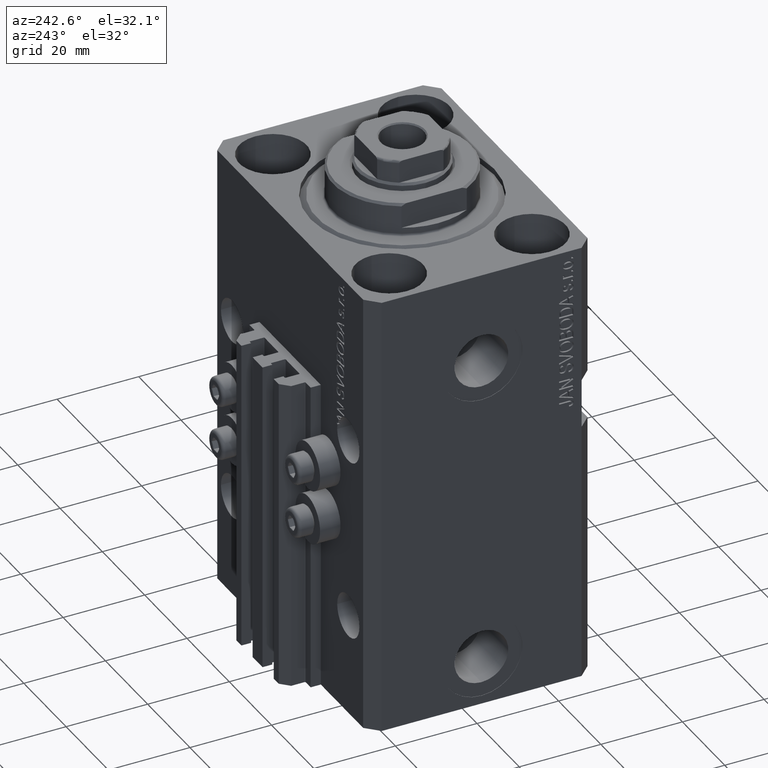
[diagram: clean part render]
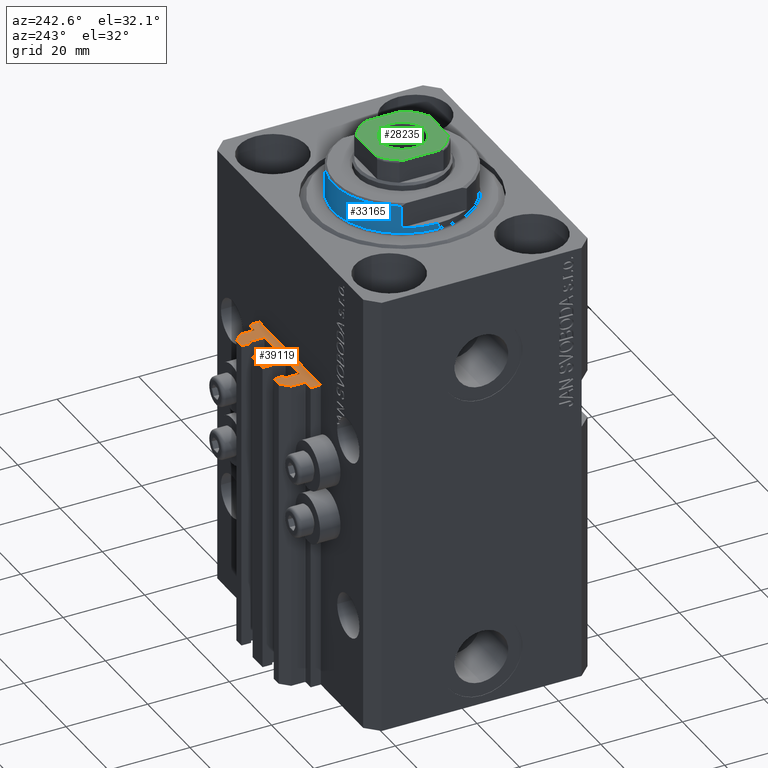
[diagram: same view with three faces highlighted in distinct colors, each labeled with its STEP entity id]
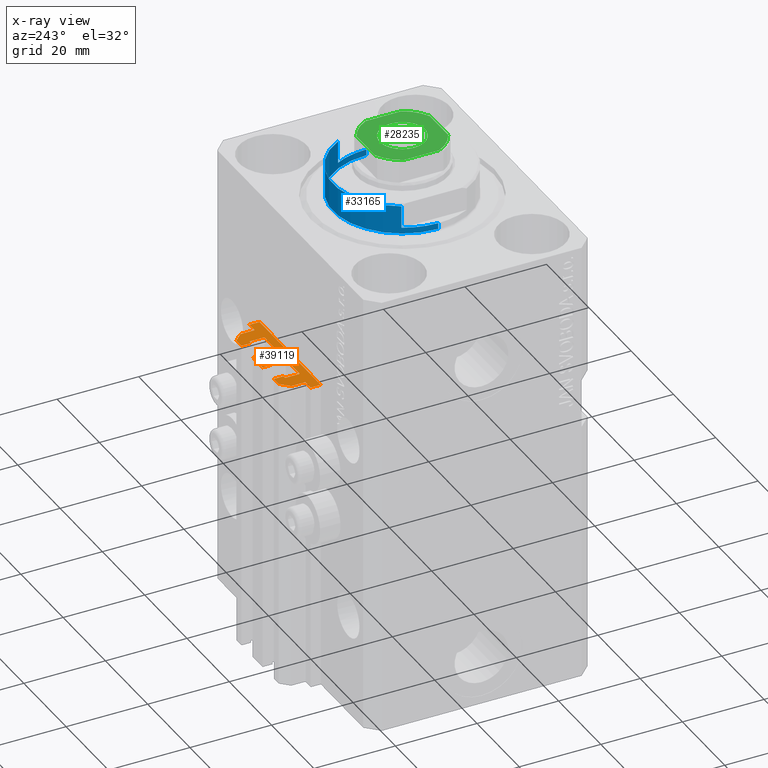
[diagram: x-ray of the same camera — body ghosted, the three highlighted faces saturated]
A machine part, auxiliary view with three faces highlighted in distinct colors.
The next image is the same camera in x-ray (body ghosted, the three faces saturated) — at least one of them is partly hidden behind the body in this view.
Their STEP definitions:

[orange] entity #39119 — the highlighted planar face has unit normal (0, 0, 1).
#724 = DIRECTION ( 'NONE',  ( 1.000000000000000000, 0.000000000000000000, 0.000000000000000000 ) ) ;
#892 = CIRCLE ( 'NONE', #14596, 0.1999999999999970690 ) ;
#1340 = ORIENTED_EDGE ( 'NONE', *, *, #12630, .T. ) ;
#1371 = EDGE_CURVE ( 'NONE', #12769, #1455, #11452, .T. ) ;
#1455 = VERTEX_POINT ( 'NONE', #22915 ) ;
#1488 = CARTESIAN_POINT ( 'NONE',  ( 12.20000000000000107, 30.20000000000002061, -33.00000000000000000 ) ) ;
#1587 = DIRECTION ( 'NONE',  ( 0.000000000000000000, 0.000000000000000000, 1.000000000000000000 ) ) ;
#1608 = ORIENTED_EDGE ( 'NONE', *, *, #22301, .F. ) ;
#1744 = CARTESIAN_POINT ( 'NONE',  ( -1.599999999999997868, 32.90000000000001279, -33.00000000000000000 ) ) ;
#1788 = VERTEX_POINT ( 'NONE', #5337 ) ;
#1831 = VECTOR ( 'NONE', #44254, 1000.000000000000000 ) ;
#2359 = LINE ( 'NONE', #46407, #21431 ) ;
#2412 = CARTESIAN_POINT ( 'NONE',  ( 1.599999999999999645, 29.69999999999999929, -33.00000000000000000 ) ) ;
#2489 = LINE ( 'NONE', #17066, #44606 ) ;
#2578 = ORIENTED_EDGE ( 'NONE', *, *, #24560, .T. ) ;
#2605 = DIRECTION ( 'NONE',  ( -1.000000000000000000, 0.000000000000000000, 0.000000000000000000 ) ) ;
#2645 = DIRECTION ( 'NONE',  ( -1.000000000000000000, 0.000000000000000000, 0.000000000000000000 ) ) ;
#2827 = ORIENTED_EDGE ( 'NONE', *, *, #36814, .T. ) ;
#2910 = AXIS2_PLACEMENT_3D ( 'NONE', #7215, #21801, #4119 ) ;
#3120 = VECTOR ( 'NONE', #36135, 1000.000000000000000 ) ;
#3138 = ORIENTED_EDGE ( 'NONE', *, *, #22453, .F. ) ;
#3320 = ORIENTED_EDGE ( 'NONE', *, *, #10796, .F. ) ;
#3435 = VERTEX_POINT ( 'NONE', #19821 ) ;
#3468 = VERTEX_POINT ( 'NONE', #35854 ) ;
#3476 = CARTESIAN_POINT ( 'NONE',  ( -7.650000000000000355, 33.09999999999999432, -33.00000000000000000 ) ) ;
#3518 = ORIENTED_EDGE ( 'NONE', *, *, #7107, .T. ) ;
#3902 = VECTOR ( 'NONE', #21447, 1000.000000000000000 ) ;
#3995 = LINE ( 'NONE', #32718, #3902 ) ;
#4071 = CIRCLE ( 'NONE', #43056, 0.2000000000000031197 ) ;
#4088 = ORIENTED_EDGE ( 'NONE', *, *, #39709, .T. ) ;
#4119 = DIRECTION ( 'NONE',  ( 1.000000000000000000, 0.000000000000000000, 0.000000000000000000 ) ) ;
#4125 = CARTESIAN_POINT ( 'NONE',  ( -1.800000000000000933, 29.69999999999999929, -33.00000000000000000 ) ) ;
#4481 = ORIENTED_EDGE ( 'NONE', *, *, #37088, .T. ) ;
#4559 = ORIENTED_EDGE ( 'NONE', *, *, #13640, .T. ) ;
#4841 = DIRECTION ( 'NONE',  ( 1.000000000000000000, 0.000000000000000000, 0.000000000000000000 ) ) ;
#4946 = ORIENTED_EDGE ( 'NONE', *, *, #14795, .T. ) ;
#5137 = CARTESIAN_POINT ( 'NONE',  ( -1.800000000000000933, 33.10000000000001563, -33.00000000000000000 ) ) ;
#5161 = CARTESIAN_POINT ( 'NONE',  ( 7.649999999999998579, 33.10000000000001563, -33.00000000000000000 ) ) ;
#5246 = ORIENTED_EDGE ( 'NONE', *, *, #17654, .T. ) ;
#5337 = CARTESIAN_POINT ( 'NONE',  ( -2.350000000000003197, 33.10000000000000853, -33.00000000000000000 ) ) ;
#5483 = ORIENTED_EDGE ( 'NONE', *, *, #28129, .T. ) ;
#5881 = DIRECTION ( 'NONE',  ( -1.084202172485505223E-15, 1.000000000000000000, 0.000000000000000000 ) ) ;
#6045 = CARTESIAN_POINT ( 'NONE',  ( 1.800000000000000933, 33.10000000000001563, -33.00000000000000000 ) ) ;
#6322 = LINE ( 'NONE', #35535, #21399 ) ;
#6600 = CARTESIAN_POINT ( 'NONE',  ( -14.50000000000000000, 27.50000000000000355, -33.00000000000000000 ) ) ;
#6659 = DIRECTION ( 'NONE',  ( -1.000000000000000000, -1.084202172485504828E-15, 0.000000000000000000 ) ) ;
#6772 = VERTEX_POINT ( 'NONE', #10050 ) ;
#7107 = EDGE_CURVE ( 'NONE', #32771, #45942, #25458, .T. ) ;
#7215 = CARTESIAN_POINT ( 'NONE',  ( 1.800000000000000933, 32.90000000000001279, -33.00000000000000000 ) ) ;
#7275 = DIRECTION ( 'NONE',  ( 0.000000000000000000, 0.000000000000000000, 1.000000000000000000 ) ) ;
#7597 = CARTESIAN_POINT ( 'NONE',  ( -8.399999999999996803, 29.69999999999999929, -33.00000000000000000 ) ) ;
#8069 = VERTEX_POINT ( 'NONE', #5137 ) ;
#8230 = LINE ( 'NONE', #15167, #36613 ) ;
#8373 = ORIENTED_EDGE ( 'NONE', *, *, #25423, .F. ) ;
#9383 = CARTESIAN_POINT ( 'NONE',  ( -12.00000000000000000, 33.49999999999998579, -33.00000000000000000 ) ) ;
#9614 = ORIENTED_EDGE ( 'NONE', *, *, #39445, .T. ) ;
#9754 = DIRECTION ( 'NONE',  ( -6.776263578034378061E-17, -1.000000000000000000, 0.000000000000000000 ) ) ;
#10031 = LINE ( 'NONE', #24611, #45712 ) ;
#10050 = CARTESIAN_POINT ( 'NONE',  ( -8.199999999999997513, 33.09999999999998721, -33.00000000000000000 ) ) ;
#10065 = CARTESIAN_POINT ( 'NONE',  ( -7.650000000000000355, 35.50000000000000000, -33.00000000000000000 ) ) ;
#10186 = AXIS2_PLACEMENT_3D ( 'NONE', #14311, #36829, #18617 ) ;
#10343 = DIRECTION ( 'NONE',  ( 1.000000000000000000, -1.261617073437681085E-14, 0.000000000000000000 ) ) ;
#10350 = VERTEX_POINT ( 'NONE', #45035 ) ;
#10440 = LINE ( 'NONE', #31763, #13051 ) ;
#10501 = DIRECTION ( 'NONE',  ( -5.256737805990334897E-16, 1.000000000000000000, 0.000000000000000000 ) ) ;
#10658 = LINE ( 'NONE', #39865, #35926 ) ;
#10774 = ORIENTED_EDGE ( 'NONE', *, *, #12310, .F. ) ;
#10796 = EDGE_CURVE ( 'NONE', #37581, #44938, #44200, .T. ) ;
#10886 = AXIS2_PLACEMENT_3D ( 'NONE', #44285, #44042, #33027 ) ;
#11452 = LINE ( 'NONE', #32527, #42463 ) ;
#11501 = VERTEX_POINT ( 'NONE', #31963 ) ;
#11628 = LINE ( 'NONE', #16155, #18609 ) ;
#11713 = CIRCLE ( 'NONE', #10186, 0.2000000000000016209 ) ;
#11924 = VERTEX_POINT ( 'NONE', #36928 ) ;
#12136 = VERTEX_POINT ( 'NONE', #43515 ) ;
#12142 = ORIENTED_EDGE ( 'NONE', *, *, #16669, .T. ) ;
#12178 = VERTEX_POINT ( 'NONE', #21374 ) ;
#12199 = VECTOR ( 'NONE', #17936, 1000.000000000000000 ) ;
#12310 = EDGE_CURVE ( 'NONE', #41796, #45942, #24312, .T. ) ;
#12630 = EDGE_CURVE ( 'NONE', #40180, #44598, #38692, .T. ) ;
#12731 = CARTESIAN_POINT ( 'NONE',  ( 7.649999999999998579, 35.50000000000001421, -33.00000000000000000 ) ) ;
#12769 = VERTEX_POINT ( 'NONE', #14463 ) ;
#13051 = VECTOR ( 'NONE', #24088, 1000.000000000000000 ) ;
#13621 = AXIS2_PLACEMENT_3D ( 'NONE', #4125, #40506, #15115 ) ;
#13640 = EDGE_CURVE ( 'NONE', #30170, #3435, #46185, .T. ) ;
#13685 = LINE ( 'NONE', #6045, #27899 ) ;
#13899 = ORIENTED_EDGE ( 'NONE', *, *, #38534, .T. ) ;
#14302 = LINE ( 'NONE', #28907, #25958 ) ;
#14311 = CARTESIAN_POINT ( 'NONE',  ( 1.800000000000000933, 29.69999999999999929, -33.00000000000000000 ) ) ;
#14463 = CARTESIAN_POINT ( 'NONE',  ( 12.00000000000000178, 30.20000000000002061, -33.00000000000000000 ) ) ;
#14507 = CARTESIAN_POINT ( 'NONE',  ( -10.00000000000000000, 35.50000000000000000, -33.00000000000000000 ) ) ;
#14596 = AXIS2_PLACEMENT_3D ( 'NONE', #27111, #23282, #44638 ) ;
#14795 = EDGE_CURVE ( 'NONE', #1788, #8069, #10658, .T. ) ;
#14930 = DIRECTION ( 'NONE',  ( 1.000000000000000000, 0.000000000000000000, 0.000000000000000000 ) ) ;
#15011 = VERTEX_POINT ( 'NONE', #44381 ) ;
#15070 = ORIENTED_EDGE ( 'NONE', *, *, #18734, .T. ) ;
#15111 = VERTEX_POINT ( 'NONE', #12731 ) ;
#15115 = DIRECTION ( 'NONE',  ( 1.000000000000000000, 0.000000000000000000, 0.000000000000000000 ) ) ;
#15167 = CARTESIAN_POINT ( 'NONE',  ( -2.350000000000003642, 35.50000000000001421, -33.00000000000000000 ) ) ;
#15581 = VERTEX_POINT ( 'NONE', #27980 ) ;
#15762 = EDGE_CURVE ( 'NONE', #42359, #39908, #37509, .T. ) ;
#16067 = CARTESIAN_POINT ( 'NONE',  ( -1.800000000000000933, 32.90000000000001279, -33.00000000000000000 ) ) ;
#16091 = ORIENTED_EDGE ( 'NONE', *, *, #37952, .F. ) ;
#16155 = CARTESIAN_POINT ( 'NONE',  ( 7.649999999999998579, 35.50000000000001421, -33.00000000000000000 ) ) ;
#16158 = DIRECTION ( 'NONE',  ( 1.000000000000000000, 0.000000000000000000, 0.000000000000000000 ) ) ;
#16178 = CARTESIAN_POINT ( 'NONE',  ( -2.350000000000003642, 35.50000000000001421, -33.00000000000000000 ) ) ;
#16354 = VECTOR ( 'NONE', #24248, 1000.000000000000000 ) ;
#16396 = LINE ( 'NONE', #5161, #36540 ) ;
#16605 = DIRECTION ( 'NONE',  ( -0.7071067811865460184, -0.7071067811865490160, 0.000000000000000000 ) ) ;
#16669 = EDGE_CURVE ( 'NONE', #10350, #11501, #40679, .T. ) ;
#16718 = LINE ( 'NONE', #25074, #31304 ) ;
#17059 = EDGE_CURVE ( 'NONE', #12136, #30170, #3995, .T. ) ;
#17066 = CARTESIAN_POINT ( 'NONE',  ( -12.00000000000000000, 33.49999999999998579, -33.00000000000000000 ) ) ;
#17179 = CARTESIAN_POINT ( 'NONE',  ( -12.00000000000000000, 30.19999999999999218, -33.00000000000000000 ) ) ;
#17398 = VERTEX_POINT ( 'NONE', #2412 ) ;
#17605 = DIRECTION ( 'NONE',  ( 1.000000000000000000, 0.000000000000000000, 0.000000000000000000 ) ) ;
#17654 = EDGE_CURVE ( 'NONE', #6772, #26349, #2359, .T. ) ;
#17804 = CARTESIAN_POINT ( 'NONE',  ( -8.199999999999997513, 32.89999999999999147, -33.00000000000000000 ) ) ;
#17936 = DIRECTION ( 'NONE',  ( -1.000000000000000000, 0.000000000000000000, 0.000000000000000000 ) ) ;
#18241 = AXIS2_PLACEMENT_3D ( 'NONE', #39523, #28501, #43120 ) ;
#18498 = ORIENTED_EDGE ( 'NONE', *, *, #27877, .T. ) ;
#18609 = VECTOR ( 'NONE', #26921, 1000.000000000000000 ) ;
#18617 = DIRECTION ( 'NONE',  ( 1.000000000000000000, 0.000000000000000000, 0.000000000000000000 ) ) ;
#18734 = EDGE_CURVE ( 'NONE', #32479, #3468, #10031, .T. ) ;
#19189 = DIRECTION ( 'NONE',  ( 0.000000000000000000, 0.000000000000000000, 1.000000000000000000 ) ) ;
#19768 = LINE ( 'NONE', #16178, #20816 ) ;
#19811 = VECTOR ( 'NONE', #2605, 1000.000000000000000 ) ;
#19821 = CARTESIAN_POINT ( 'NONE',  ( 12.20000000000000107, 30.00000000000002487, -33.00000000000000000 ) ) ;
#20040 = EDGE_CURVE ( 'NONE', #41397, #28900, #16396, .T. ) ;
#20297 = VERTEX_POINT ( 'NONE', #33312 ) ;
#20353 = EDGE_CURVE ( 'NONE', #41796, #33854, #30891, .T. ) ;
#20816 = VECTOR ( 'NONE', #30787, 1000.000000000000000 ) ;
#20934 = CARTESIAN_POINT ( 'NONE',  ( -8.399999999999996803, 29.69999999999999929, -33.00000000000000000 ) ) ;
#21374 = CARTESIAN_POINT ( 'NONE',  ( 2.349999999999999645, 33.10000000000000853, -33.00000000000000000 ) ) ;
#21399 = VECTOR ( 'NONE', #16605, 1000.000000000000227 ) ;
#21431 = VECTOR ( 'NONE', #24585, 1000.000000000000000 ) ;
#21447 = DIRECTION ( 'NONE',  ( 0.000000000000000000, 1.000000000000000000, 0.000000000000000000 ) ) ;
#21801 = DIRECTION ( 'NONE',  ( 0.000000000000000000, 0.000000000000000000, 1.000000000000000000 ) ) ;
#21908 = VERTEX_POINT ( 'NONE', #14507 ) ;
#22030 = VECTOR ( 'NONE', #9754, 1000.000000000000000 ) ;
#22301 = EDGE_CURVE ( 'NONE', #6772, #44598, #39685, .T. ) ;
#22453 = EDGE_CURVE ( 'NONE', #30250, #46074, #8230, .T. ) ;
#22915 = CARTESIAN_POINT ( 'NONE',  ( 12.00000000000000000, 33.50000000000001421, -33.00000000000000000 ) ) ;
#23140 = VECTOR ( 'NONE', #43694, 1000.000000000000000 ) ;
#23282 = DIRECTION ( 'NONE',  ( 0.000000000000000000, 0.000000000000000000, 1.000000000000000000 ) ) ;
#23924 = EDGE_CURVE ( 'NONE', #15581, #21908, #39979, .T. ) ;
#24088 = DIRECTION ( 'NONE',  ( 0.000000000000000000, 1.000000000000000000, 0.000000000000000000 ) ) ;
#24248 = DIRECTION ( 'NONE',  ( -1.000000000000000000, 0.000000000000000000, 0.000000000000000000 ) ) ;
#24305 = CARTESIAN_POINT ( 'NONE',  ( -14.50000000000000000, 29.99999999999999289, -33.00000000000000000 ) ) ;
#24312 = CIRCLE ( 'NONE', #13621, 0.1999999999999994282 ) ;
#24467 = CARTESIAN_POINT ( 'NONE',  ( 1.600000000000000533, 32.90000000000001279, -33.00000000000000000 ) ) ;
#24498 = CARTESIAN_POINT ( 'NONE',  ( 14.49999999999999645, 30.00000000000002487, -33.00000000000000000 ) ) ;
#24560 = EDGE_CURVE ( 'NONE', #1455, #15011, #14302, .T. ) ;
#24585 = DIRECTION ( 'NONE',  ( 1.000000000000000000, 1.261617073437685503E-14, 0.000000000000000000 ) ) ;
#24611 = CARTESIAN_POINT ( 'NONE',  ( -14.50000000000000000, 29.99999999999999289, -33.00000000000000000 ) ) ;
#24757 = ORIENTED_EDGE ( 'NONE', *, *, #44012, .T. ) ;
#24784 = LINE ( 'NONE', #6600, #28276 ) ;
#24976 = DIRECTION ( 'NONE',  ( 1.000000000000000000, 0.000000000000000000, 0.000000000000000000 ) ) ;
#25074 = CARTESIAN_POINT ( 'NONE',  ( 8.199999999999999289, 29.50000000000000711, -33.00000000000000000 ) ) ;
#25128 = VECTOR ( 'NONE', #5881, 1000.000000000000000 ) ;
#25322 = VERTEX_POINT ( 'NONE', #9383 ) ;
#25336 = CARTESIAN_POINT ( 'NONE',  ( 8.400000000000000355, 32.90000000000001990, -33.00000000000000000 ) ) ;
#25423 = EDGE_CURVE ( 'NONE', #40180, #33854, #32772, .T. ) ;
#25458 = LINE ( 'NONE', #28168, #22030 ) ;
#25511 = ORIENTED_EDGE ( 'NONE', *, *, #41440, .T. ) ;
#25603 = EDGE_LOOP ( 'NONE', ( #15070, #5483, #46025, #4559, #47358, #34130, #2578, #25511, #4481, #45002, #39458, #12142, #16091, #18498, #37042, #2827, #3320, #24757, #35325, #3138, #13899, #4946, #28869, #3518, #10774, #32948, #8373, #1340, #1608, #5246, #9614, #45013, #36362, #4088, #26528, #26345 ) ) ;
#25747 = CARTESIAN_POINT ( 'NONE',  ( 1.800000000000000933, 33.10000000000001563, -33.00000000000000000 ) ) ;
#25958 = VECTOR ( 'NONE', #43767, 1000.000000000000114 ) ;
#26028 = CARTESIAN_POINT ( 'NONE',  ( -12.20000000000000107, 29.99999999999998934, -33.00000000000000000 ) ) ;
#26262 = CARTESIAN_POINT ( 'NONE',  ( -1.800000000000000933, 29.50000000000000355, -33.00000000000000000 ) ) ;
#26345 = ORIENTED_EDGE ( 'NONE', *, *, #29820, .T. ) ;
#26349 = VERTEX_POINT ( 'NONE', #29459 ) ;
#26528 = ORIENTED_EDGE ( 'NONE', *, *, #15762, .F. ) ;
#26921 = DIRECTION ( 'NONE',  ( 0.000000000000000000, -1.000000000000000000, 0.000000000000000000 ) ) ;
#27111 = CARTESIAN_POINT ( 'NONE',  ( 8.200000000000001066, 32.90000000000001990, -33.00000000000000000 ) ) ;
#27224 = CARTESIAN_POINT ( 'NONE',  ( -8.400000000000000355, 32.89999999999999858, -33.00000000000000000 ) ) ;
#27877 = EDGE_CURVE ( 'NONE', #20297, #11924, #16718, .T. ) ;
#27899 = VECTOR ( 'NONE', #10343, 1000.000000000000000 ) ;
#27980 = CARTESIAN_POINT ( 'NONE',  ( -7.650000000000000355, 35.50000000000000000, -33.00000000000000000 ) ) ;
#28129 = EDGE_CURVE ( 'NONE', #3468, #12136, #24784, .T. ) ;
#28168 = CARTESIAN_POINT ( 'NONE',  ( -1.600000000000000533, 32.90000000000001279, -33.00000000000000000 ) ) ;
#28222 = CARTESIAN_POINT ( 'NONE',  ( -1.600000000000000755, 29.69999999999999929, -33.00000000000000000 ) ) ;
#28276 = VECTOR ( 'NONE', #17605, 1000.000000000000000 ) ;
#28312 = LINE ( 'NONE', #31458, #16354 ) ;
#28423 = CARTESIAN_POINT ( 'NONE',  ( 14.49999999999999645, 30.00000000000002487, -33.00000000000000000 ) ) ;
#28445 = EDGE_CURVE ( 'NONE', #21908, #25322, #6322, .T. ) ;
#28501 = DIRECTION ( 'NONE',  ( 0.000000000000000000, 0.000000000000000000, 1.000000000000000000 ) ) ;
#28869 = ORIENTED_EDGE ( 'NONE', *, *, #39091, .F. ) ;
#28900 = VERTEX_POINT ( 'NONE', #46027 ) ;
#28907 = CARTESIAN_POINT ( 'NONE',  ( 12.00000000000000000, 33.50000000000001421, -33.00000000000000000 ) ) ;
#29117 = EDGE_CURVE ( 'NONE', #12178, #46074, #10440, .T. ) ;
#29160 = LINE ( 'NONE', #43782, #1831 ) ;
#29263 = AXIS2_PLACEMENT_3D ( 'NONE', #40696, #33747, #724 ) ;
#29459 = CARTESIAN_POINT ( 'NONE',  ( -7.650000000000000355, 33.09999999999999432, -33.00000000000000000 ) ) ;
#29820 = EDGE_CURVE ( 'NONE', #42359, #32479, #33468, .T. ) ;
#30170 = VERTEX_POINT ( 'NONE', #24498 ) ;
#30250 = VERTEX_POINT ( 'NONE', #42714 ) ;
#30787 = DIRECTION ( 'NONE',  ( 1.807003620809174632E-16, -1.000000000000000000, 0.000000000000000000 ) ) ;
#30891 = LINE ( 'NONE', #45987, #38092 ) ;
#31304 = VECTOR ( 'NONE', #6659, 1000.000000000000000 ) ;
#31458 = CARTESIAN_POINT ( 'NONE',  ( 9.999999999999998224, 35.50000000000001421, -33.00000000000000000 ) ) ;
#31576 = CIRCLE ( 'NONE', #29263, 0.1999999999999987899 ) ;
#31686 = DIRECTION ( 'NONE',  ( 0.000000000000000000, -1.000000000000000000, 0.000000000000000000 ) ) ;
#31763 = CARTESIAN_POINT ( 'NONE',  ( 2.349999999999999645, 33.10000000000000853, -33.00000000000000000 ) ) ;
#31963 = CARTESIAN_POINT ( 'NONE',  ( 8.400000000000000355, 29.70000000000000284, -33.00000000000000000 ) ) ;
#32479 = VERTEX_POINT ( 'NONE', #24305 ) ;
#32527 = CARTESIAN_POINT ( 'NONE',  ( 12.00000000000000178, 30.20000000000002061, -33.00000000000000000 ) ) ;
#32681 = DIRECTION ( 'NONE',  ( 1.000000000000000000, 1.261617073437673039E-14, 0.000000000000000000 ) ) ;
#32718 = CARTESIAN_POINT ( 'NONE',  ( 14.49999999999999645, 27.50000000000000355, -33.00000000000000000 ) ) ;
#32771 = VERTEX_POINT ( 'NONE', #1744 ) ;
#32772 = CIRCLE ( 'NONE', #18241, 0.1999999999999987899 ) ;
#32948 = ORIENTED_EDGE ( 'NONE', *, *, #20353, .T. ) ;
#33027 = DIRECTION ( 'NONE',  ( 1.000000000000000000, 0.000000000000000000, 0.000000000000000000 ) ) ;
#33312 = CARTESIAN_POINT ( 'NONE',  ( 8.199999999999999289, 29.50000000000000711, -33.00000000000000000 ) ) ;
#33330 = PLANE ( 'NONE',  #40768 ) ;
#33468 = LINE ( 'NONE', #26028, #36749 ) ;
#33571 = DIRECTION ( 'NONE',  ( 0.000000000000000000, 0.000000000000000000, 1.000000000000000000 ) ) ;
#33747 = DIRECTION ( 'NONE',  ( 0.000000000000000000, 0.000000000000000000, 1.000000000000000000 ) ) ;
#33854 = VERTEX_POINT ( 'NONE', #38609 ) ;
#34130 = ORIENTED_EDGE ( 'NONE', *, *, #1371, .T. ) ;
#35325 = ORIENTED_EDGE ( 'NONE', *, *, #29117, .T. ) ;
#35535 = CARTESIAN_POINT ( 'NONE',  ( -10.00000000000000000, 35.50000000000000000, -33.00000000000000000 ) ) ;
#35854 = CARTESIAN_POINT ( 'NONE',  ( -14.50000000000000000, 27.50000000000000355, -33.00000000000000000 ) ) ;
#35887 = DIRECTION ( 'NONE',  ( 0.000000000000000000, -1.000000000000000000, 0.000000000000000000 ) ) ;
#35926 = VECTOR ( 'NONE', #32681, 1000.000000000000000 ) ;
#36042 = EDGE_CURVE ( 'NONE', #17398, #11924, #11713, .T. ) ;
#36135 = DIRECTION ( 'NONE',  ( -5.421010862427496532E-16, -1.000000000000000000, 0.000000000000000000 ) ) ;
#36362 = ORIENTED_EDGE ( 'NONE', *, *, #28445, .T. ) ;
#36540 = VECTOR ( 'NONE', #37971, 1000.000000000000000 ) ;
#36613 = VECTOR ( 'NONE', #14930, 1000.000000000000000 ) ;
#36715 = AXIS2_PLACEMENT_3D ( 'NONE', #41788, #1587, #16158 ) ;
#36749 = VECTOR ( 'NONE', #40659, 1000.000000000000000 ) ;
#36814 = EDGE_CURVE ( 'NONE', #17398, #44938, #29160, .T. ) ;
#36829 = DIRECTION ( 'NONE',  ( 0.000000000000000000, 0.000000000000000000, 1.000000000000000000 ) ) ;
#36928 = CARTESIAN_POINT ( 'NONE',  ( 1.800000000000000933, 29.50000000000000000, -33.00000000000000000 ) ) ;
#37042 = ORIENTED_EDGE ( 'NONE', *, *, #36042, .F. ) ;
#37088 = EDGE_CURVE ( 'NONE', #15111, #41397, #11628, .T. ) ;
#37509 = CIRCLE ( 'NONE', #36715, 0.2000000000000005107 ) ;
#37581 = VERTEX_POINT ( 'NONE', #25747 ) ;
#37952 = EDGE_CURVE ( 'NONE', #20297, #11501, #42287, .T. ) ;
#37971 = DIRECTION ( 'NONE',  ( 1.000000000000000000, -1.261617073437673828E-14, 0.000000000000000000 ) ) ;
#38092 = VECTOR ( 'NONE', #2645, 1000.000000000000000 ) ;
#38414 = CARTESIAN_POINT ( 'NONE',  ( 7.649999999999998579, 33.10000000000001563, -33.00000000000000000 ) ) ;
#38534 = EDGE_CURVE ( 'NONE', #30250, #1788, #19768, .T. ) ;
#38609 = CARTESIAN_POINT ( 'NONE',  ( -8.199999999999997513, 29.50000000000000355, -33.00000000000000000 ) ) ;
#38692 = LINE ( 'NONE', #20934, #25128 ) ;
#39091 = EDGE_CURVE ( 'NONE', #32771, #8069, #4071, .T. ) ;
#39119 = ADVANCED_FACE ( 'NONE', ( #44826 ), #33330, .T. ) ;
#39342 = EDGE_CURVE ( 'NONE', #12769, #3435, #31576, .T. ) ;
#39445 = EDGE_CURVE ( 'NONE', #26349, #15581, #39627, .T. ) ;
#39458 = ORIENTED_EDGE ( 'NONE', *, *, #46943, .F. ) ;
#39523 = CARTESIAN_POINT ( 'NONE',  ( -8.199999999999997513, 29.69999999999999929, -33.00000000000000000 ) ) ;
#39627 = LINE ( 'NONE', #3476, #23140 ) ;
#39685 = CIRCLE ( 'NONE', #44278, 0.2000000000000005107 ) ;
#39709 = EDGE_CURVE ( 'NONE', #25322, #39908, #2489, .T. ) ;
#39865 = CARTESIAN_POINT ( 'NONE',  ( -2.350000000000003197, 33.10000000000000853, -33.00000000000000000 ) ) ;
#39908 = VERTEX_POINT ( 'NONE', #17179 ) ;
#39979 = LINE ( 'NONE', #10065, #12199 ) ;
#40059 = CARTESIAN_POINT ( 'NONE',  ( -12.20000000000000107, 29.99999999999998934, -33.00000000000000000 ) ) ;
#40180 = VERTEX_POINT ( 'NONE', #7597 ) ;
#40506 = DIRECTION ( 'NONE',  ( 0.000000000000000000, 0.000000000000000000, 1.000000000000000000 ) ) ;
#40659 = DIRECTION ( 'NONE',  ( -1.000000000000000000, 1.508455196501571429E-15, 0.000000000000000000 ) ) ;
#40679 = LINE ( 'NONE', #25336, #3120 ) ;
#40696 = CARTESIAN_POINT ( 'NONE',  ( 12.20000000000000107, 30.20000000000002061, -33.00000000000000000 ) ) ;
#40768 = AXIS2_PLACEMENT_3D ( 'NONE', #1488, #33571, #44113 ) ;
#41397 = VERTEX_POINT ( 'NONE', #38414 ) ;
#41440 = EDGE_CURVE ( 'NONE', #15011, #15111, #28312, .T. ) ;
#41788 = CARTESIAN_POINT ( 'NONE',  ( -12.20000000000000107, 30.19999999999999218, -33.00000000000000000 ) ) ;
#41796 = VERTEX_POINT ( 'NONE', #26262 ) ;
#42287 = CIRCLE ( 'NONE', #10886, 0.1999999999999987899 ) ;
#42359 = VERTEX_POINT ( 'NONE', #40059 ) ;
#42463 = VECTOR ( 'NONE', #10501, 1000.000000000000000 ) ;
#42714 = CARTESIAN_POINT ( 'NONE',  ( -2.350000000000003642, 35.50000000000001421, -33.00000000000000000 ) ) ;
#43056 = AXIS2_PLACEMENT_3D ( 'NONE', #16067, #19189, #4841 ) ;
#43120 = DIRECTION ( 'NONE',  ( 1.000000000000000000, 0.000000000000000000, 0.000000000000000000 ) ) ;
#43515 = CARTESIAN_POINT ( 'NONE',  ( 14.49999999999999645, 27.50000000000000355, -33.00000000000000000 ) ) ;
#43694 = DIRECTION ( 'NONE',  ( 0.000000000000000000, 1.000000000000000000, 0.000000000000000000 ) ) ;
#43767 = DIRECTION ( 'NONE',  ( -0.7071067811865474617, 0.7071067811865474617, 0.000000000000000000 ) ) ;
#43782 = CARTESIAN_POINT ( 'NONE',  ( 1.600000000000000533, 29.69999999999999929, -33.00000000000000000 ) ) ;
#44012 = EDGE_CURVE ( 'NONE', #37581, #12178, #13685, .T. ) ;
#44027 = CARTESIAN_POINT ( 'NONE',  ( 2.349999999999999645, 35.50000000000001421, -33.00000000000000000 ) ) ;
#44042 = DIRECTION ( 'NONE',  ( 0.000000000000000000, 0.000000000000000000, 1.000000000000000000 ) ) ;
#44113 = DIRECTION ( 'NONE',  ( 1.000000000000000000, 0.000000000000000000, -0.000000000000000000 ) ) ;
#44200 = CIRCLE ( 'NONE', #2910, 0.2000000000000033418 ) ;
#44254 = DIRECTION ( 'NONE',  ( 0.000000000000000000, 1.000000000000000000, 0.000000000000000000 ) ) ;
#44278 = AXIS2_PLACEMENT_3D ( 'NONE', #17804, #7275, #24976 ) ;
#44285 = CARTESIAN_POINT ( 'NONE',  ( 8.199999999999999289, 29.70000000000000284, -33.00000000000000000 ) ) ;
#44381 = CARTESIAN_POINT ( 'NONE',  ( 9.999999999999998224, 35.50000000000001421, -33.00000000000000000 ) ) ;
#44598 = VERTEX_POINT ( 'NONE', #27224 ) ;
#44606 = VECTOR ( 'NONE', #31686, 1000.000000000000000 ) ;
#44638 = DIRECTION ( 'NONE',  ( 1.000000000000000000, 0.000000000000000000, 0.000000000000000000 ) ) ;
#44826 = FACE_OUTER_BOUND ( 'NONE', #25603, .T. ) ;
#44938 = VERTEX_POINT ( 'NONE', #24467 ) ;
#45002 = ORIENTED_EDGE ( 'NONE', *, *, #20040, .T. ) ;
#45013 = ORIENTED_EDGE ( 'NONE', *, *, #23924, .T. ) ;
#45035 = CARTESIAN_POINT ( 'NONE',  ( 8.399999999999998579, 32.90000000000001990, -33.00000000000000000 ) ) ;
#45712 = VECTOR ( 'NONE', #35887, 1000.000000000000000 ) ;
#45942 = VERTEX_POINT ( 'NONE', #28222 ) ;
#45987 = CARTESIAN_POINT ( 'NONE',  ( -1.800000000000000933, 29.50000000000000355, -33.00000000000000000 ) ) ;
#46025 = ORIENTED_EDGE ( 'NONE', *, *, #17059, .T. ) ;
#46027 = CARTESIAN_POINT ( 'NONE',  ( 8.200000000000001066, 33.10000000000000853, -33.00000000000000000 ) ) ;
#46074 = VERTEX_POINT ( 'NONE', #44027 ) ;
#46185 = LINE ( 'NONE', #28423, #19811 ) ;
#46407 = CARTESIAN_POINT ( 'NONE',  ( -8.199999999999997513, 33.09999999999998721, -33.00000000000000000 ) ) ;
#46943 = EDGE_CURVE ( 'NONE', #10350, #28900, #892, .T. ) ;
#47358 = ORIENTED_EDGE ( 'NONE', *, *, #39342, .F. ) ;

[blue] entity #33165 — the highlighted cylindrical surface (partial cylindrical patch) has radius 17 mm, axis along (0, 0, -1).
#180 = CARTESIAN_POINT ( 'NONE',  ( -15.00000000000000000, 8.000000000000001776, -7.500000000000007105 ) ) ;
#193 = ORIENTED_EDGE ( 'NONE', *, *, #6364, .F. ) ;
#1142 = ORIENTED_EDGE ( 'NONE', *, *, #45016, .T. ) ;
#1995 = CARTESIAN_POINT ( 'NONE',  ( 0.000000000000000000, 0.000000000000000000, -2.000000000000000000 ) ) ;
#2668 = VERTEX_POINT ( 'NONE', #10929 ) ;
#2700 = CARTESIAN_POINT ( 'NONE',  ( 17.00000000000000000, 0.000000000000000000, -8.000000000000000000 ) ) ;
#2846 = AXIS2_PLACEMENT_3D ( 'NONE', #35299, #42010, #9673 ) ;
#3444 = VECTOR ( 'NONE', #28051, 1000.000000000000000 ) ;
#3654 = VERTEX_POINT ( 'NONE', #180 ) ;
#5236 = VERTEX_POINT ( 'NONE', #13494 ) ;
#5262 = DIRECTION ( 'NONE',  ( -0.000000000000000000, -0.000000000000000000, 1.000000000000000000 ) ) ;
#5589 = DIRECTION ( 'NONE',  ( 0.000000000000000000, 0.000000000000000000, -1.000000000000000000 ) ) ;
#6364 = EDGE_CURVE ( 'NONE', #2668, #44944, #14346, .T. ) ;
#6849 = CARTESIAN_POINT ( 'NONE',  ( 0.000000000000000000, 0.000000000000000000, -0.5000000000000004441 ) ) ;
#8494 = EDGE_LOOP ( 'NONE', ( #28590, #1142, #16873, #26459, #193, #21630, #23578, #19527 ) ) ;
#8521 = DIRECTION ( 'NONE',  ( 0.000000000000000000, 0.000000000000000000, -1.000000000000000000 ) ) ;
#8855 = DIRECTION ( 'NONE',  ( 1.000000000000000000, 0.000000000000000000, 0.000000000000000000 ) ) ;
#8938 = VECTOR ( 'NONE', #37397, 1000.000000000000000 ) ;
#9503 = CARTESIAN_POINT ( 'NONE',  ( -17.00000000000000000, 2.081899558550500280E-15, -2.000000000000000000 ) ) ;
#9673 = DIRECTION ( 'NONE',  ( -1.000000000000000000, 0.000000000000000000, 0.000000000000000000 ) ) ;
#10929 = CARTESIAN_POINT ( 'NONE',  ( 14.99999999999999645, 8.000000000000003553, -2.000000000000000000 ) ) ;
#11999 = CARTESIAN_POINT ( 'NONE',  ( -17.00000000000000000, 2.081899558550500280E-15, -8.000000000000000000 ) ) ;
#13494 = CARTESIAN_POINT ( 'NONE',  ( 17.00000000000000000, 0.000000000000000000, -0.5000000000000004441 ) ) ;
#14346 = CIRCLE ( 'NONE', #41123, 17.00000000000000000 ) ;
#15068 = CIRCLE ( 'NONE', #2846, 17.00000000000000000 ) ;
#15337 = VECTOR ( 'NONE', #43011, 1000.000000000000000 ) ;
#15857 = EDGE_CURVE ( 'NONE', #33446, #41369, #18376, .T. ) ;
#16130 = VECTOR ( 'NONE', #30123, 1000.000000000000000 ) ;
#16393 = CARTESIAN_POINT ( 'NONE',  ( 0.000000000000000000, 0.000000000000000000, -2.000000000000000000 ) ) ;
#16873 = ORIENTED_EDGE ( 'NONE', *, *, #20893, .T. ) ;
#17145 = LINE ( 'NONE', #28153, #15337 ) ;
#17914 = EDGE_CURVE ( 'NONE', #25295, #3654, #15068, .T. ) ;
#18376 = CIRCLE ( 'NONE', #45165, 17.00000000000000000 ) ;
#19527 = ORIENTED_EDGE ( 'NONE', *, *, #46133, .T. ) ;
#20166 = DIRECTION ( 'NONE',  ( -1.000000000000000000, 0.000000000000000000, 0.000000000000000000 ) ) ;
#20544 = CARTESIAN_POINT ( 'NONE',  ( 0.000000000000000000, 0.000000000000000000, -8.000000000000000000 ) ) ;
#20893 = EDGE_CURVE ( 'NONE', #40368, #5236, #44997, .T. ) ;
#21630 = ORIENTED_EDGE ( 'NONE', *, *, #29149, .F. ) ;
#23094 = DIRECTION ( 'NONE',  ( -1.000000000000000000, 0.000000000000000000, 0.000000000000000000 ) ) ;
#23578 = ORIENTED_EDGE ( 'NONE', *, *, #17914, .T. ) ;
#25295 = VERTEX_POINT ( 'NONE', #38600 ) ;
#26281 = LINE ( 'NONE', #40910, #16130 ) ;
#26459 = ORIENTED_EDGE ( 'NONE', *, *, #43993, .F. ) ;
#28051 = DIRECTION ( 'NONE',  ( -0.000000000000000000, -0.000000000000000000, 1.000000000000000000 ) ) ;
#28153 = CARTESIAN_POINT ( 'NONE',  ( 15.00000000000000000, 8.000000000000001776, -8.000000000000000000 ) ) ;
#28590 = ORIENTED_EDGE ( 'NONE', *, *, #15857, .F. ) ;
#29149 = EDGE_CURVE ( 'NONE', #25295, #2668, #17145, .T. ) ;
#29242 = AXIS2_PLACEMENT_3D ( 'NONE', #20544, #5262, #8855 ) ;
#30123 = DIRECTION ( 'NONE',  ( -0.000000000000000000, -0.000000000000000000, 1.000000000000000000 ) ) ;
#30979 = CARTESIAN_POINT ( 'NONE',  ( -14.99999999999999645, 8.000000000000003553, -2.000000000000000000 ) ) ;
#31103 = FACE_OUTER_BOUND ( 'NONE', #8494, .T. ) ;
#32606 = CARTESIAN_POINT ( 'NONE',  ( 17.00000000000000000, 0.000000000000000000, -2.000000000000000000 ) ) ;
#33165 = ADVANCED_FACE ( 'NONE', ( #31103 ), #42363, .T. ) ;
#33446 = VERTEX_POINT ( 'NONE', #9503 ) ;
#35299 = CARTESIAN_POINT ( 'NONE',  ( 0.000000000000000000, 0.000000000000000000, -7.500000000000007105 ) ) ;
#37397 = DIRECTION ( 'NONE',  ( -0.000000000000000000, -0.000000000000000000, 1.000000000000000000 ) ) ;
#38600 = CARTESIAN_POINT ( 'NONE',  ( 15.00000000000000000, 8.000000000000001776, -7.500000000000007105 ) ) ;
#39645 = AXIS2_PLACEMENT_3D ( 'NONE', #6849, #47316, #43722 ) ;
#40368 = VERTEX_POINT ( 'NONE', #40993 ) ;
#40910 = CARTESIAN_POINT ( 'NONE',  ( -15.00000000000000000, 8.000000000000001776, -8.000000000000000000 ) ) ;
#40993 = CARTESIAN_POINT ( 'NONE',  ( -17.00000000000000000, 2.081899558550500280E-15, -0.5000000000000004441 ) ) ;
#41123 = AXIS2_PLACEMENT_3D ( 'NONE', #1995, #5589, #20166 ) ;
#41369 = VERTEX_POINT ( 'NONE', #30979 ) ;
#42010 = DIRECTION ( 'NONE',  ( 0.000000000000000000, 0.000000000000000000, 1.000000000000000000 ) ) ;
#42363 = CYLINDRICAL_SURFACE ( 'NONE', #29242, 17.00000000000000000 ) ;
#43011 = DIRECTION ( 'NONE',  ( -0.000000000000000000, -0.000000000000000000, 1.000000000000000000 ) ) ;
#43722 = DIRECTION ( 'NONE',  ( 1.000000000000000000, 0.000000000000000000, 0.000000000000000000 ) ) ;
#43993 = EDGE_CURVE ( 'NONE', #44944, #5236, #46514, .T. ) ;
#44103 = LINE ( 'NONE', #11999, #8938 ) ;
#44944 = VERTEX_POINT ( 'NONE', #32606 ) ;
#44997 = CIRCLE ( 'NONE', #39645, 17.00000000000000000 ) ;
#45016 = EDGE_CURVE ( 'NONE', #33446, #40368, #44103, .T. ) ;
#45165 = AXIS2_PLACEMENT_3D ( 'NONE', #16393, #8521, #23094 ) ;
#46133 = EDGE_CURVE ( 'NONE', #3654, #41369, #26281, .T. ) ;
#46514 = LINE ( 'NONE', #2700, #3444 ) ;
#47316 = DIRECTION ( 'NONE',  ( -0.000000000000000000, -0.000000000000000000, -1.000000000000000000 ) ) ;

[green] entity #28235 — the highlighted planar face has unit normal (0, 0, 1).
#319 = LINE ( 'NONE', #10371, #38771 ) ;
#583 = DIRECTION ( 'NONE',  ( 1.000000000000000000, 0.000000000000000000, 0.000000000000000000 ) ) ;
#624 = CARTESIAN_POINT ( 'NONE',  ( 0.000000000000000000, 0.000000000000000000, 115.1000000000000085 ) ) ;
#672 = CIRCLE ( 'NONE', #11356, 10.00000000000000000 ) ;
#955 = VERTEX_POINT ( 'NONE', #28243 ) ;
#1035 = DIRECTION ( 'NONE',  ( -9.637352644315595243E-17, 1.000000000000000000, -0.000000000000000000 ) ) ;
#1220 = AXIS2_PLACEMENT_3D ( 'NONE', #23270, #34784, #35019 ) ;
#1902 = EDGE_CURVE ( 'NONE', #37820, #9876, #40995, .T. ) ;
#3906 = CARTESIAN_POINT ( 'NONE',  ( -5.549999999999985612, 6.796789735267793031E-16, 115.1000000000000085 ) ) ;
#4206 = FACE_OUTER_BOUND ( 'NONE', #24127, .T. ) ;
#4408 = DIRECTION ( 'NONE',  ( 1.000000000000000000, 0.000000000000000000, 0.000000000000000000 ) ) ;
#4724 = DIRECTION ( 'NONE',  ( -0.000000000000000000, 0.000000000000000000, 1.000000000000000000 ) ) ;
#6252 = VECTOR ( 'NONE', #45252, 1000.000000000000000 ) ;
#6603 = CARTESIAN_POINT ( 'NONE',  ( -9.000000000000000000, 8.999999999999998224, 115.1000000000000085 ) ) ;
#6919 = CARTESIAN_POINT ( 'NONE',  ( -4.358898943540671311, -9.000000000000001776, 115.1000000000000085 ) ) ;
#7071 = PLANE ( 'NONE',  #19090 ) ;
#7510 = VERTEX_POINT ( 'NONE', #9782 ) ;
#8162 = EDGE_CURVE ( 'NONE', #31918, #14815, #319, .T. ) ;
#9782 = CARTESIAN_POINT ( 'NONE',  ( 5.549999999999985612, 0.000000000000000000, 115.1000000000000085 ) ) ;
#9803 = ORIENTED_EDGE ( 'NONE', *, *, #43397, .T. ) ;
#9876 = VERTEX_POINT ( 'NONE', #24445 ) ;
#9960 = CARTESIAN_POINT ( 'NONE',  ( 4.358898943540671311, -9.000000000000001776, 115.1000000000000085 ) ) ;
#10182 = CIRCLE ( 'NONE', #34660, 10.00000000000000000 ) ;
#10371 = CARTESIAN_POINT ( 'NONE',  ( -8.999999999999998224, -9.000000000000001776, 115.1000000000000085 ) ) ;
#11356 = AXIS2_PLACEMENT_3D ( 'NONE', #26396, #30237, #583 ) ;
#13375 = LINE ( 'NONE', #30635, #6252 ) ;
#14506 = DIRECTION ( 'NONE',  ( 0.000000000000000000, -0.000000000000000000, -1.000000000000000000 ) ) ;
#14663 = DIRECTION ( 'NONE',  ( 1.000000000000000000, 0.000000000000000000, 0.000000000000000000 ) ) ;
#14713 = CIRCLE ( 'NONE', #20078, 10.00000000000000000 ) ;
#14815 = VERTEX_POINT ( 'NONE', #9960 ) ;
#15029 = ORIENTED_EDGE ( 'NONE', *, *, #22392, .T. ) ;
#15868 = CARTESIAN_POINT ( 'NONE',  ( 0.000000000000000000, 0.000000000000000000, 115.1000000000000085 ) ) ;
#17388 = DIRECTION ( 'NONE',  ( 1.000000000000000000, 0.000000000000000000, 0.000000000000000000 ) ) ;
#18485 = ORIENTED_EDGE ( 'NONE', *, *, #27588, .T. ) ;
#19029 = CIRCLE ( 'NONE', #30488, 5.549999999999985612 ) ;
#19090 = AXIS2_PLACEMENT_3D ( 'NONE', #624, #32692, #36525 ) ;
#19531 = CARTESIAN_POINT ( 'NONE',  ( 0.000000000000000000, 0.000000000000000000, 115.1000000000000085 ) ) ;
#19968 = CARTESIAN_POINT ( 'NONE',  ( 4.358898943540677529, 8.999999999999998224, 115.1000000000000085 ) ) ;
#20078 = AXIS2_PLACEMENT_3D ( 'NONE', #19531, #4724, #41807 ) ;
#20242 = CIRCLE ( 'NONE', #20984, 5.549999999999985612 ) ;
#20259 = DIRECTION ( 'NONE',  ( -1.000000000000000000, -0.000000000000000000, -0.000000000000000000 ) ) ;
#20398 = ORIENTED_EDGE ( 'NONE', *, *, #33122, .T. ) ;
#20984 = AXIS2_PLACEMENT_3D ( 'NONE', #31773, #14506, #17388 ) ;
#21417 = EDGE_CURVE ( 'NONE', #34148, #42085, #672, .T. ) ;
#21434 = CARTESIAN_POINT ( 'NONE',  ( 9.000000000000000000, 4.358898943540675752, 115.1000000000000085 ) ) ;
#21648 = LINE ( 'NONE', #33819, #25166 ) ;
#22392 = EDGE_CURVE ( 'NONE', #25103, #7510, #19029, .T. ) ;
#23270 = CARTESIAN_POINT ( 'NONE',  ( 0.000000000000000000, 0.000000000000000000, 115.1000000000000085 ) ) ;
#24127 = EDGE_LOOP ( 'NONE', ( #20398, #43465, #38116, #46288, #18485, #25025, #26311, #41382 ) ) ;
#24445 = CARTESIAN_POINT ( 'NONE',  ( -9.000000000000000000, 4.358898943540674864, 115.1000000000000085 ) ) ;
#25025 = ORIENTED_EDGE ( 'NONE', *, *, #21417, .T. ) ;
#25103 = VERTEX_POINT ( 'NONE', #3906 ) ;
#25166 = VECTOR ( 'NONE', #1035, 1000.000000000000000 ) ;
#26311 = ORIENTED_EDGE ( 'NONE', *, *, #36311, .T. ) ;
#26396 = CARTESIAN_POINT ( 'NONE',  ( 0.000000000000000000, 0.000000000000000000, 115.1000000000000085 ) ) ;
#27369 = CARTESIAN_POINT ( 'NONE',  ( 0.000000000000000000, 0.000000000000000000, 115.1000000000000085 ) ) ;
#27588 = EDGE_CURVE ( 'NONE', #41453, #34148, #21648, .T. ) ;
#28235 = ADVANCED_FACE ( 'NONE', ( #29566, #4206 ), #7071, .T. ) ;
#28243 = CARTESIAN_POINT ( 'NONE',  ( -9.000000000000000000, -4.358898943540675752, 115.1000000000000085 ) ) ;
#29566 = FACE_BOUND ( 'NONE', #43435, .T. ) ;
#30237 = DIRECTION ( 'NONE',  ( -0.000000000000000000, 0.000000000000000000, 1.000000000000000000 ) ) ;
#30488 = AXIS2_PLACEMENT_3D ( 'NONE', #15868, #37205, #4408 ) ;
#30635 = CARTESIAN_POINT ( 'NONE',  ( -9.000000000000000000, 8.999999999999998224, 115.1000000000000085 ) ) ;
#31773 = CARTESIAN_POINT ( 'NONE',  ( 0.000000000000000000, 0.000000000000000000, 115.1000000000000085 ) ) ;
#31918 = VERTEX_POINT ( 'NONE', #6919 ) ;
#32663 = CARTESIAN_POINT ( 'NONE',  ( -4.358898943540678417, 8.999999999999998224, 115.1000000000000085 ) ) ;
#32692 = DIRECTION ( 'NONE',  ( -0.000000000000000000, 0.000000000000000000, 1.000000000000000000 ) ) ;
#33122 = EDGE_CURVE ( 'NONE', #9876, #955, #13375, .T. ) ;
#33819 = CARTESIAN_POINT ( 'NONE',  ( 9.000000000000000000, 8.999999999999998224, 115.1000000000000085 ) ) ;
#34148 = VERTEX_POINT ( 'NONE', #21434 ) ;
#34660 = AXIS2_PLACEMENT_3D ( 'NONE', #27369, #35285, #35048 ) ;
#34784 = DIRECTION ( 'NONE',  ( -0.000000000000000000, 0.000000000000000000, 1.000000000000000000 ) ) ;
#35019 = DIRECTION ( 'NONE',  ( 1.000000000000000000, 0.000000000000000000, 0.000000000000000000 ) ) ;
#35048 = DIRECTION ( 'NONE',  ( 1.000000000000000000, 0.000000000000000000, 0.000000000000000000 ) ) ;
#35285 = DIRECTION ( 'NONE',  ( -0.000000000000000000, 0.000000000000000000, 1.000000000000000000 ) ) ;
#36311 = EDGE_CURVE ( 'NONE', #42085, #37820, #38951, .T. ) ;
#36525 = DIRECTION ( 'NONE',  ( 1.000000000000000000, 0.000000000000000000, 0.000000000000000000 ) ) ;
#37205 = DIRECTION ( 'NONE',  ( 0.000000000000000000, -0.000000000000000000, -1.000000000000000000 ) ) ;
#37820 = VERTEX_POINT ( 'NONE', #32663 ) ;
#38116 = ORIENTED_EDGE ( 'NONE', *, *, #8162, .T. ) ;
#38466 = EDGE_CURVE ( 'NONE', #955, #31918, #14713, .T. ) ;
#38771 = VECTOR ( 'NONE', #14663, 1000.000000000000000 ) ;
#38951 = LINE ( 'NONE', #6603, #42312 ) ;
#39614 = EDGE_CURVE ( 'NONE', #14815, #41453, #10182, .T. ) ;
#40467 = CARTESIAN_POINT ( 'NONE',  ( 9.000000000000001776, -4.358898943540675752, 115.1000000000000085 ) ) ;
#40995 = CIRCLE ( 'NONE', #1220, 10.00000000000000000 ) ;
#41382 = ORIENTED_EDGE ( 'NONE', *, *, #1902, .T. ) ;
#41453 = VERTEX_POINT ( 'NONE', #40467 ) ;
#41807 = DIRECTION ( 'NONE',  ( 1.000000000000000000, 0.000000000000000000, 0.000000000000000000 ) ) ;
#42085 = VERTEX_POINT ( 'NONE', #19968 ) ;
#42312 = VECTOR ( 'NONE', #20259, 1000.000000000000000 ) ;
#43397 = EDGE_CURVE ( 'NONE', #7510, #25103, #20242, .T. ) ;
#43435 = EDGE_LOOP ( 'NONE', ( #9803, #15029 ) ) ;
#43465 = ORIENTED_EDGE ( 'NONE', *, *, #38466, .T. ) ;
#45252 = DIRECTION ( 'NONE',  ( 9.637352644315595243E-17, -1.000000000000000000, 0.000000000000000000 ) ) ;
#46288 = ORIENTED_EDGE ( 'NONE', *, *, #39614, .T. ) ;